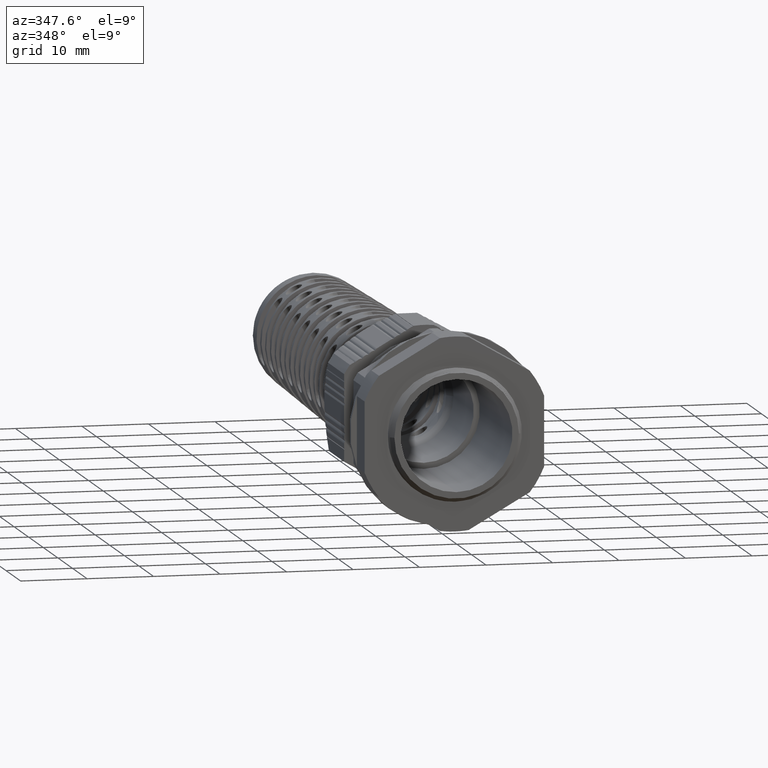
[diagram: clean part render]
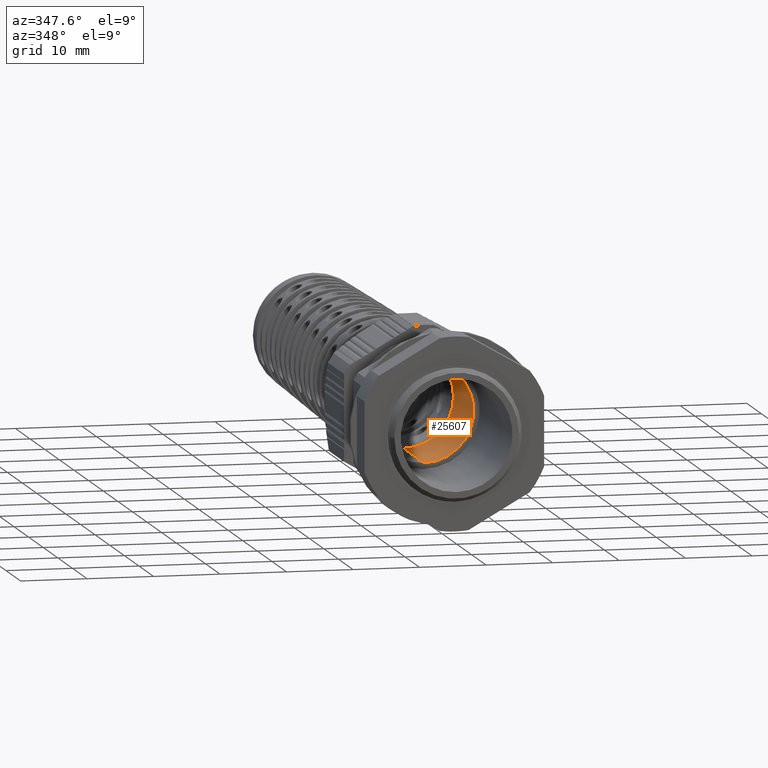
[diagram: same view with one face highlighted and labeled with its STEP entity id]
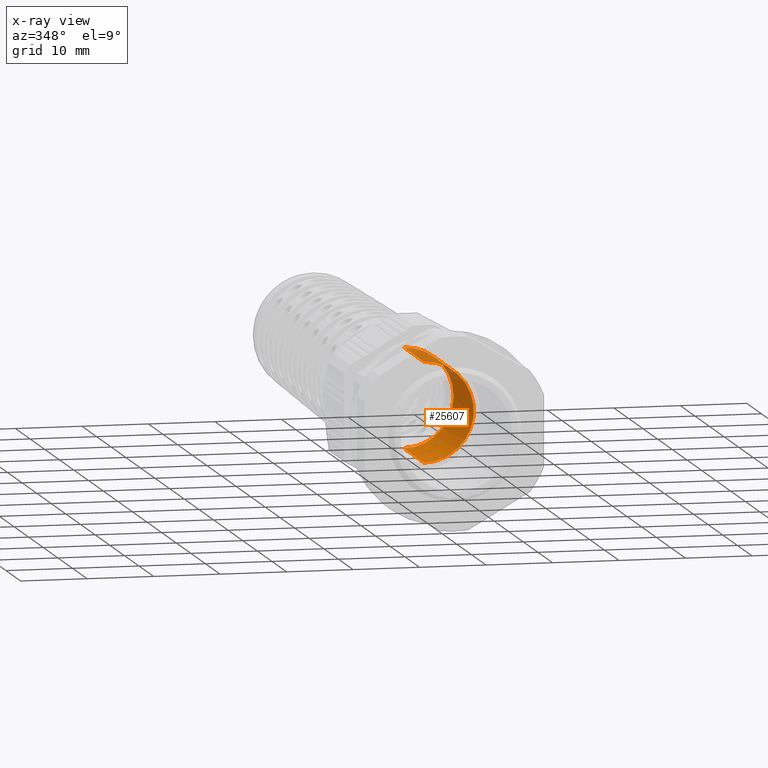
[diagram: x-ray of the same camera — body ghosted, the highlighted face saturated]
A machine part, auxiliary view. The second image highlights one B-rep face of the part: STEP entity #25607.
The next image is the same camera in x-ray: the body ghosted, the highlighted face saturated — about 14% of this face is hidden behind the body in this view.
In plain terms, the highlighted cylindrical surface (partial cylindrical patch) has radius 7.5 mm, axis along (0, -1, 0).
Its self-contained STEP definition (entity closure, byte-faithful):
#6583 = ORIENTED_EDGE ( 'NONE', *, *, #25665, .F. ) ;
#10311 = CARTESIAN_POINT ( 'NONE',  ( 50.00000000000000000, 25.28476438100789600, 0.0000000000000000000 ) ) ;
#10329 = CYLINDRICAL_SURFACE ( 'NONE', #23545, 7.500000000000000000 ) ;
#10339 = FACE_OUTER_BOUND ( 'NONE', #18347, .T. ) ;
#10345 = DIRECTION ( 'NONE',  ( 0.0000000000000000000, -1.000000000000000000, 0.0000000000000000000 ) ) ;
#10348 = DIRECTION ( 'NONE',  ( 0.0000000000000000000, 0.0000000000000000000, -1.000000000000000000 ) ) ;
#11685 = CARTESIAN_POINT ( 'NONE',  ( 50.00000000000005700, 36.39711431702999500, 1.101549407245273800E-013 ) ) ;
#11714 = DIRECTION ( 'NONE',  ( 1.000000000000000000, -5.551115123125773200E-015, -4.930380657631315400E-030 ) ) ;
#11716 = DIRECTION ( 'NONE',  ( 5.551115123125774800E-015, 1.000000000000000000, 3.700743415417181600E-015 ) ) ;
#11732 = LINE ( 'NONE', #11777, #23578 ) ;
#11768 = DIRECTION ( 'NONE',  ( 0.0000000000000000000, -1.000000000000000000, 0.0000000000000000000 ) ) ;
#11777 = CARTESIAN_POINT ( 'NONE',  ( 50.00000000000000000, 25.28476438100789600, -7.500000000000000000 ) ) ;
#11889 = DIRECTION ( 'NONE',  ( 0.0000000000000000000, -1.000000000000000000, 0.0000000000000000000 ) ) ;
#11896 = CARTESIAN_POINT ( 'NONE',  ( 50.00000000000000000, 25.28476438100789600, 7.500000000000000000 ) ) ;
#11930 = LINE ( 'NONE', #11896, #23630 ) ;
#15669 = EDGE_CURVE ( 'NONE', #17031, #16989, #32237, .T. ) ;
#15745 = EDGE_CURVE ( 'NONE', #16962, #17010, #32254, .T. ) ;
#16962 = VERTEX_POINT ( 'NONE', #33210 ) ;
#16985 = VERTEX_POINT ( 'NONE', #33186 ) ;
#16989 = VERTEX_POINT ( 'NONE', #33226 ) ;
#17010 = VERTEX_POINT ( 'NONE', #33244 ) ;
#17031 = VERTEX_POINT ( 'NONE', #33224 ) ;
#18347 = EDGE_LOOP ( 'NONE', ( #6583, #25999, #26130, #26005, #26002 ) ) ;
#23545 = AXIS2_PLACEMENT_3D ( 'NONE', #10311, #10345, #10348 ) ;
#23575 = CIRCLE ( 'NONE', #23576, 7.500000000000013300 ) ;
#23576 = AXIS2_PLACEMENT_3D ( 'NONE', #11685, #11716, #11714 ) ;
#23578 = VECTOR ( 'NONE', #11768, 1000.000000000000000 ) ;
#23630 = VECTOR ( 'NONE', #11889, 1000.000000000000000 ) ;
#25607 = ADVANCED_FACE ( 'NONE', ( #10339 ), #10329, .F. ) ;
#25634 = EDGE_CURVE ( 'NONE', #17010, #16985, #23575, .T. ) ;
#25636 = EDGE_CURVE ( 'NONE', #16985, #16989, #11732, .T. ) ;
#25665 = EDGE_CURVE ( 'NONE', #16962, #17031, #11930, .T. ) ;
#25999 = ORIENTED_EDGE ( 'NONE', *, *, #15745, .T. ) ;
#26002 = ORIENTED_EDGE ( 'NONE', *, *, #15669, .F. ) ;
#26005 = ORIENTED_EDGE ( 'NONE', *, *, #25636, .T. ) ;
#26130 = ORIENTED_EDGE ( 'NONE', *, *, #25634, .T. ) ;
#29589 = DIRECTION ( 'NONE',  ( -0.0000000000000000000, 1.000000000000000000, -0.0000000000000000000 ) ) ;
#29617 = CARTESIAN_POINT ( 'NONE',  ( 50.00000000000000000, 22.50000000000000000, 0.0000000000000000000 ) ) ;
#29651 = DIRECTION ( 'NONE',  ( 0.0000000000000000000, 0.0000000000000000000, -1.000000000000000000 ) ) ;
#29894 = CARTESIAN_POINT ( 'NONE',  ( 50.00000000000005700, 36.39711431702999500, 1.101549407245273800E-013 ) ) ;
#29899 = DIRECTION ( 'NONE',  ( 5.551115123125774800E-015, 1.000000000000000000, 3.700743415417181600E-015 ) ) ;
#29972 = DIRECTION ( 'NONE',  ( 1.000000000000000000, -5.551115123125773200E-015, 1.776356839400245500E-015 ) ) ;
#32237 = CIRCLE ( 'NONE', #32243, 7.500000000000000000 ) ;
#32243 = AXIS2_PLACEMENT_3D ( 'NONE', #29617, #29589, #29651 ) ;
#32254 = CIRCLE ( 'NONE', #32286, 7.500000000000013300 ) ;
#32286 = AXIS2_PLACEMENT_3D ( 'NONE', #29894, #29899, #29972 ) ;
#33186 = CARTESIAN_POINT ( 'NONE',  ( 50.00000000000000000, 36.39711431703002400, -7.499999999999903200 ) ) ;
#33210 = CARTESIAN_POINT ( 'NONE',  ( 50.00000000000000000, 36.39711431702996700, 7.500000000000122600 ) ) ;
#33224 = CARTESIAN_POINT ( 'NONE',  ( 50.00000000000000000, 22.50000000000000000, 7.500000000000000000 ) ) ;
#33226 = CARTESIAN_POINT ( 'NONE',  ( 50.00000000000000000, 22.50000000000000000, -7.500000000000000000 ) ) ;
#33244 = CARTESIAN_POINT ( 'NONE',  ( 57.50000000000006400, 36.39711431702995300, 1.101549407245273800E-013 ) ) ;